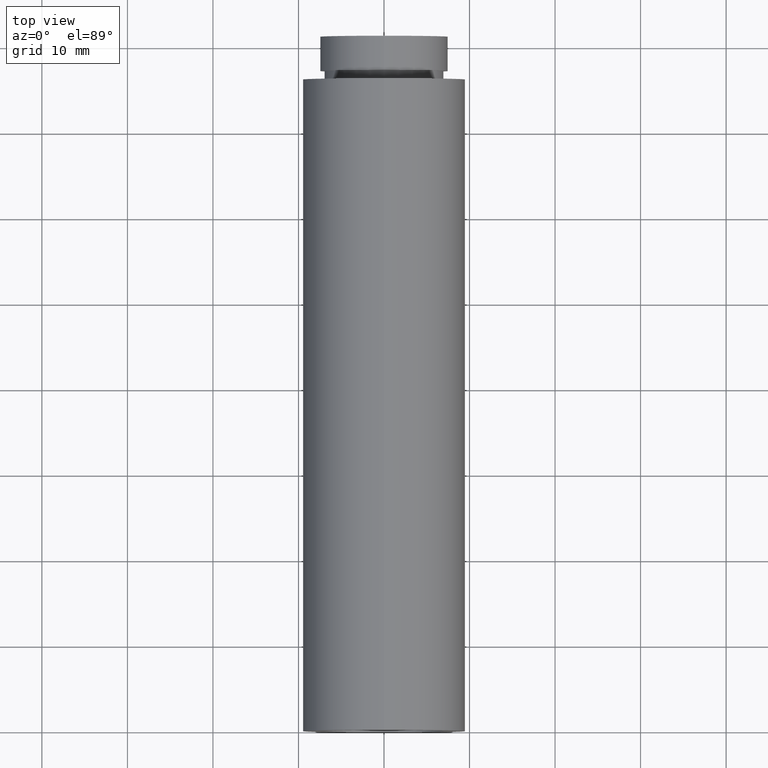
[diagram: clean part render]
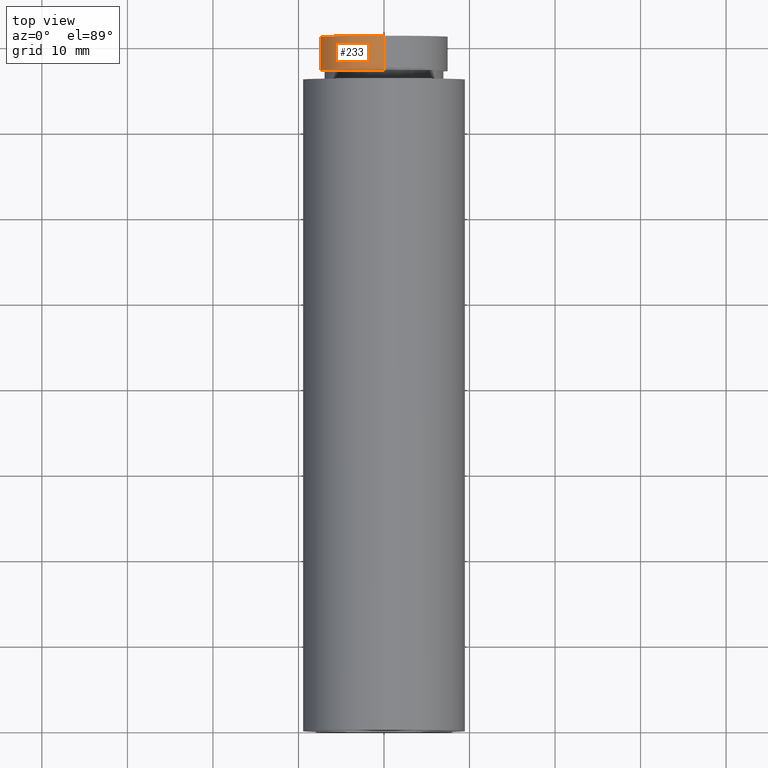
[diagram: same view with one face highlighted and labeled with its STEP entity id]
A machine part, top view. The second image highlights one B-rep face of the part: STEP entity #233.
In plain terms, the highlighted cylindrical surface (partial cylindrical patch) has radius 7.5 mm, axis along (-0, 1, -0).
Its self-contained STEP definition (entity closure, byte-faithful):
#6 = AXIS2_PLACEMENT_3D ( 'NONE', #574, #70, #329 ) ;
#22 = AXIS2_PLACEMENT_3D ( 'NONE', #119, #244, #268 ) ;
#36 = CARTESIAN_POINT ( 'NONE',  ( 0.0000000000000000000, 77.20000000000000300, 7.500000000000009800 ) ) ;
#70 = DIRECTION ( 'NONE',  ( -0.0000000000000000000, 1.000000000000000000, -0.0000000000000000000 ) ) ;
#88 = EDGE_CURVE ( 'NONE', #437, #491, #727, .T. ) ;
#119 = CARTESIAN_POINT ( 'NONE',  ( 0.0000000000000000000, 161.3761669434274500, 0.0000000000000000000 ) ) ;
#146 = EDGE_CURVE ( 'NONE', #491, #754, #686, .T. ) ;
#169 = CYLINDRICAL_SURFACE ( 'NONE', #22, 7.500000000000009800 ) ;
#182 = ORIENTED_EDGE ( 'NONE', *, *, #146, .T. ) ;
#207 = VECTOR ( 'NONE', #296, 1000.000000000000000 ) ;
#220 = CARTESIAN_POINT ( 'NONE',  ( 0.0000000000000000000, 77.20000000000000300, 0.0000000000000000000 ) ) ;
#231 = ORIENTED_EDGE ( 'NONE', *, *, #88, .T. ) ;
#233 = ADVANCED_FACE ( 'NONE', ( #517 ), #169, .T. ) ;
#244 = DIRECTION ( 'NONE',  ( -0.0000000000000000000, 1.000000000000000000, -0.0000000000000000000 ) ) ;
#266 = EDGE_LOOP ( 'NONE', ( #606, #231, #182, #638 ) ) ;
#267 = AXIS2_PLACEMENT_3D ( 'NONE', #220, #402, #461 ) ;
#268 = DIRECTION ( 'NONE',  ( 0.0000000000000000000, 0.0000000000000000000, 1.000000000000000000 ) ) ;
#296 = DIRECTION ( 'NONE',  ( -0.0000000000000000000, 1.000000000000000000, -0.0000000000000000000 ) ) ;
#329 = DIRECTION ( 'NONE',  ( 0.0000000000000000000, 0.0000000000000000000, 1.000000000000000000 ) ) ;
#402 = DIRECTION ( 'NONE',  ( -0.0000000000000000000, 1.000000000000000000, -0.0000000000000000000 ) ) ;
#411 = VERTEX_POINT ( 'NONE', #726 ) ;
#437 = VERTEX_POINT ( 'NONE', #476 ) ;
#450 = CARTESIAN_POINT ( 'NONE',  ( 0.0000000000000000000, 81.19999999999998900, 7.500000000000009800 ) ) ;
#461 = DIRECTION ( 'NONE',  ( 0.0000000000000000000, 0.0000000000000000000, 1.000000000000000000 ) ) ;
#476 = CARTESIAN_POINT ( 'NONE',  ( 9.184850993605161700E-016, 77.20000000000000300, -7.500000000000009800 ) ) ;
#491 = VERTEX_POINT ( 'NONE', #36 ) ;
#511 = VECTOR ( 'NONE', #795, 1000.000000000000000 ) ;
#517 = FACE_OUTER_BOUND ( 'NONE', #266, .T. ) ;
#541 = EDGE_CURVE ( 'NONE', #437, #411, #675, .T. ) ;
#574 = CARTESIAN_POINT ( 'NONE',  ( 0.0000000000000000000, 81.19999999999998900, 0.0000000000000000000 ) ) ;
#606 = ORIENTED_EDGE ( 'NONE', *, *, #541, .F. ) ;
#638 = ORIENTED_EDGE ( 'NONE', *, *, #733, .F. ) ;
#662 = CARTESIAN_POINT ( 'NONE',  ( 0.0000000000000000000, 161.3761669434274500, 7.500000000000009800 ) ) ;
#675 = LINE ( 'NONE', #689, #511 ) ;
#686 = LINE ( 'NONE', #662, #207 ) ;
#689 = CARTESIAN_POINT ( 'NONE',  ( 9.184850993605161700E-016, 161.3761669434274500, -7.500000000000009800 ) ) ;
#694 = CIRCLE ( 'NONE', #6, 7.500000000000009800 ) ;
#726 = CARTESIAN_POINT ( 'NONE',  ( 9.184850993605161700E-016, 81.19999999999998900, -7.500000000000009800 ) ) ;
#727 = CIRCLE ( 'NONE', #267, 7.500000000000009800 ) ;
#733 = EDGE_CURVE ( 'NONE', #411, #754, #694, .T. ) ;
#754 = VERTEX_POINT ( 'NONE', #450 ) ;
#795 = DIRECTION ( 'NONE',  ( -0.0000000000000000000, 1.000000000000000000, -0.0000000000000000000 ) ) ;